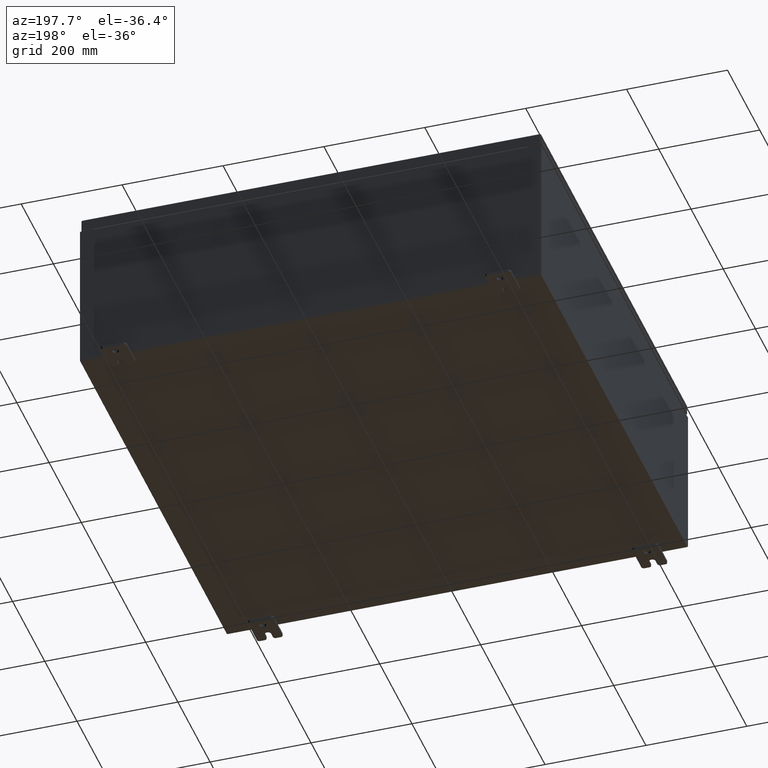
[diagram: clean part render]
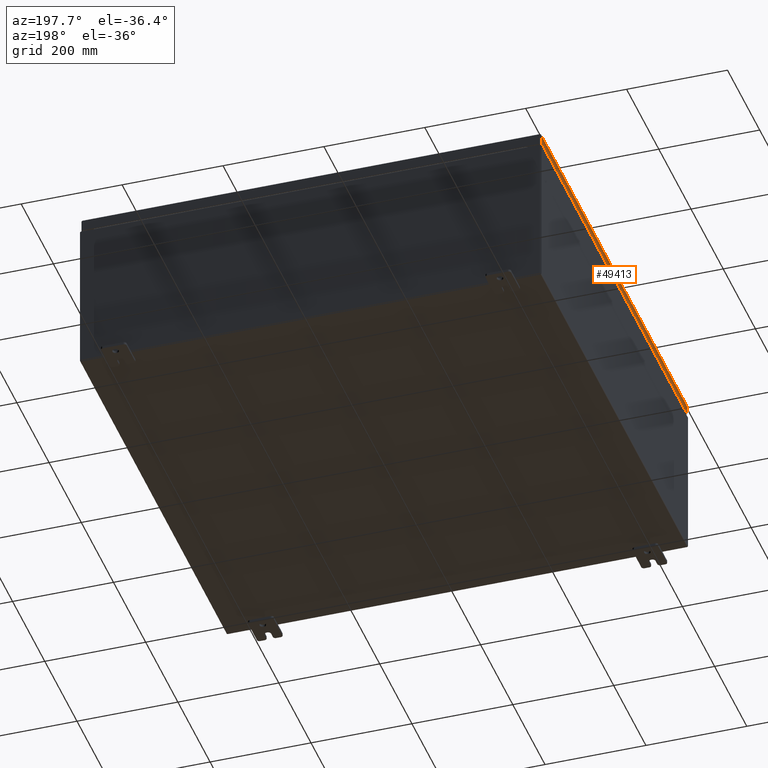
[diagram: same view with one face highlighted and labeled with its STEP entity id]
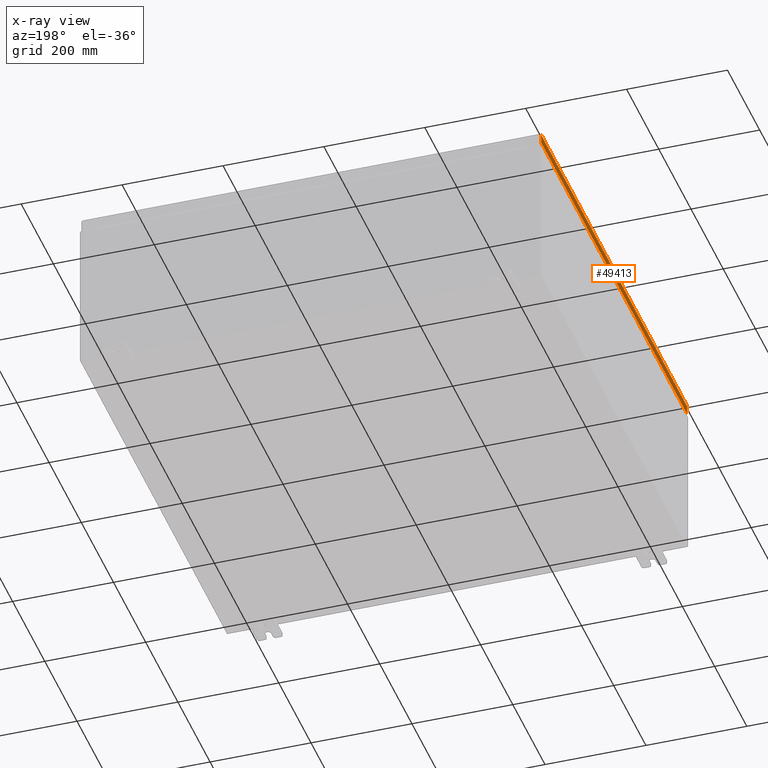
[diagram: x-ray of the same camera — body ghosted, the highlighted face saturated]
A machine part, auxiliary view. The second image highlights one B-rep face of the part: STEP entity #49413.
The next image is the same camera in x-ray: the body ghosted, the highlighted face saturated — about 0% of this face is hidden behind the body in this view.
In plain terms, the highlighted planar face has unit normal (1, -0, -0).
Its self-contained STEP definition (entity closure, byte-faithful):
#3414 = DIRECTION ( 'NONE',  ( -3.034122441942816100E-015, 6.982962677686267500E-015, -1.000000000000000000 ) ) ;
#4928 = DIRECTION ( 'NONE',  ( 1.000000000000000000, -1.218385167906009300E-016, -3.034122441942816500E-015 ) ) ;
#7016 = AXIS2_PLACEMENT_3D ( 'NONE', #36682, #4928, #42016 ) ;
#8503 = CARTESIAN_POINT ( 'NONE',  ( -17.93749999999999600, 17.84865786437627100, 1.793218966720917900E-013 ) ) ;
#9023 = CARTESIAN_POINT ( 'NONE',  ( -17.93750000000000000, -17.84865786437626400, -0.7949999999999996000 ) ) ;
#11790 = DIRECTION ( 'NONE',  ( 1.218385167906012900E-016, 1.000000000000000000, 1.218385167906013200E-016 ) ) ;
#12281 = VECTOR ( 'NONE', #63646, 39.37007874015748100 ) ;
#12528 = EDGE_LOOP ( 'NONE', ( #51180, #65052, #48159, #27685 ) ) ;
#21258 = CARTESIAN_POINT ( 'NONE',  ( -17.93750000000000000, -17.84865786437626800, -0.07469999999999976700 ) ) ;
#23081 = CARTESIAN_POINT ( 'NONE',  ( -17.93750000000000000, -17.84865786437626800, -0.08770000000000224800 ) ) ;
#23725 = VECTOR ( 'NONE', #11790, 39.37007874015748100 ) ;
#25360 = CARTESIAN_POINT ( 'NONE',  ( -17.93749999999999600, 17.84865786437627500, -0.7949999999999954900 ) ) ;
#25906 = DIRECTION ( 'NONE',  ( -1.218385167906005600E-016, -1.000000000000000000, 1.218385167906013200E-016 ) ) ;
#26501 = EDGE_CURVE ( 'NONE', #62450, #32889, #68654, .T. ) ;
#27685 = ORIENTED_EDGE ( 'NONE', *, *, #26501, .F. ) ;
#27852 = FACE_OUTER_BOUND ( 'NONE', #12528, .T. ) ;
#28920 = EDGE_CURVE ( 'NONE', #32889, #53997, #66001, .T. ) ;
#32889 = VERTEX_POINT ( 'NONE', #9023 ) ;
#33739 = LINE ( 'NONE', #8503, #60280 ) ;
#35614 = EDGE_CURVE ( 'NONE', #67062, #62450, #38120, .T. ) ;
#36682 = CARTESIAN_POINT ( 'NONE',  ( -17.93749999999999600, 2.185478394931403900E-015, 5.468538495836083800E-014 ) ) ;
#38120 = LINE ( 'NONE', #52388, #50580 ) ;
#39826 = CARTESIAN_POINT ( 'NONE',  ( -17.93749999999999600, 17.84865786437627100, -0.08770000000000439900 ) ) ;
#42016 = DIRECTION ( 'NONE',  ( -3.034122441942816500E-015, 0.0000000000000000000, -1.000000000000000000 ) ) ;
#47970 = EDGE_CURVE ( 'NONE', #67062, #53997, #33739, .T. ) ;
#48159 = ORIENTED_EDGE ( 'NONE', *, *, #28920, .F. ) ;
#49413 = ADVANCED_FACE ( 'NONE', ( #27852 ), #68384, .F. ) ;
#50580 = VECTOR ( 'NONE', #25906, 39.37007874015748100 ) ;
#51180 = ORIENTED_EDGE ( 'NONE', *, *, #35614, .F. ) ;
#52388 = CARTESIAN_POINT ( 'NONE',  ( -17.93750000000000000, -17.93750000000000000, -0.08770000000000004200 ) ) ;
#53997 = VERTEX_POINT ( 'NONE', #25360 ) ;
#59512 = CARTESIAN_POINT ( 'NONE',  ( -17.93750000000000000, -17.93750000000000000, -0.7949999999999997100 ) ) ;
#60280 = VECTOR ( 'NONE', #3414, 39.37007874015748100 ) ;
#62450 = VERTEX_POINT ( 'NONE', #23081 ) ;
#63646 = DIRECTION ( 'NONE',  ( -3.034122441942816100E-015, 6.982962677686267500E-015, -1.000000000000000000 ) ) ;
#65052 = ORIENTED_EDGE ( 'NONE', *, *, #47970, .T. ) ;
#66001 = LINE ( 'NONE', #59512, #23725 ) ;
#67062 = VERTEX_POINT ( 'NONE', #39826 ) ;
#68384 = PLANE ( 'NONE',  #7016 ) ;
#68654 = LINE ( 'NONE', #21258, #12281 ) ;